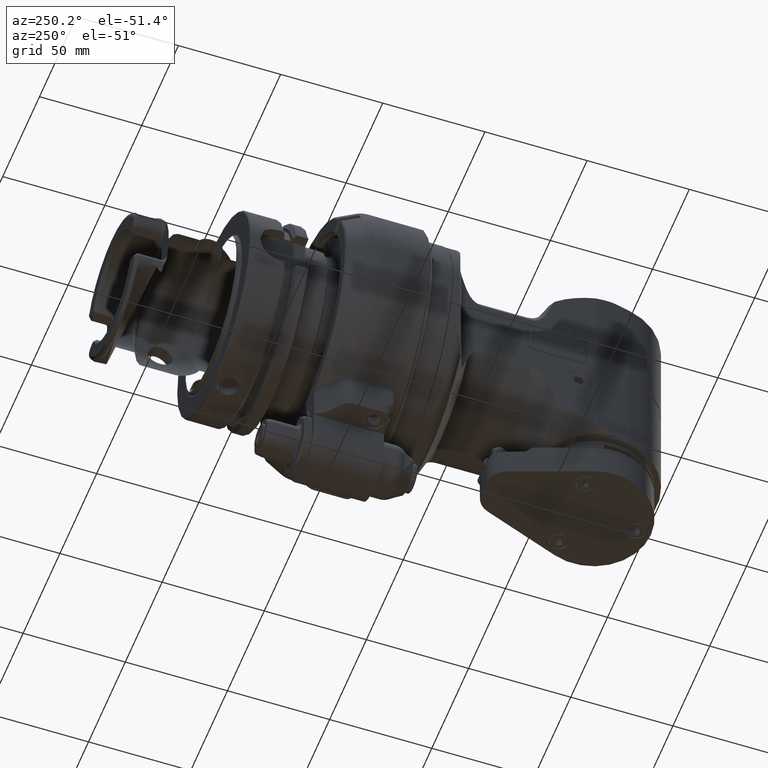
[diagram: clean part render]
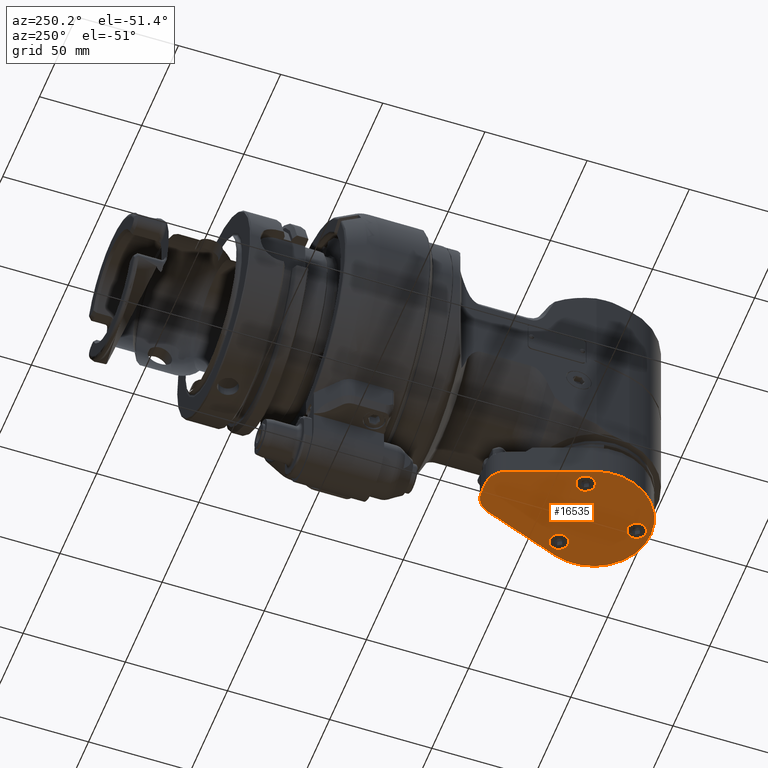
[diagram: same view with one face highlighted and labeled with its STEP entity id]
A machine part, auxiliary view. The second image highlights one B-rep face of the part: STEP entity #16535.
In plain terms, the highlighted planar face has unit normal (-0, 0, -1).
Its self-contained STEP definition (entity closure, byte-faithful):
#1438=LINE('',#32551,#2616);
#1442=LINE('',#32562,#2620);
#1443=LINE('',#32566,#2621);
#2616=VECTOR('',#22000,40.2723577721501);
#2620=VECTOR('',#22012,6.281019193707);
#2621=VECTOR('',#22015,40.2723577721501);
#3428=FACE_BOUND('',#5544,.T.);
#3429=FACE_BOUND('',#5545,.T.);
#3430=FACE_BOUND('',#5546,.T.);
#3744=PLANE('',#18174);
#4521=FACE_OUTER_BOUND('',#5543,.T.);
#5543=EDGE_LOOP('',(#14175,#14176,#14177,#14178,#14179,#14180));
#5544=EDGE_LOOP('',(#14181));
#5545=EDGE_LOOP('',(#14182));
#5546=EDGE_LOOP('',(#14183));
#6471=CIRCLE('',#18173,10.);
#6472=CIRCLE('',#18175,10.);
#6473=CIRCLE('',#18176,28.);
#6474=CIRCLE('',#18177,4.5);
#6475=CIRCLE('',#18178,4.5);
#6476=CIRCLE('',#18179,4.5);
#7781=VERTEX_POINT('',#32547);
#7783=VERTEX_POINT('',#32550);
#7785=VERTEX_POINT('',#32557);
#7786=VERTEX_POINT('',#32561);
#7787=VERTEX_POINT('',#32563);
#7788=VERTEX_POINT('',#32565);
#7789=VERTEX_POINT('',#32568);
#7790=VERTEX_POINT('',#32570);
#7791=VERTEX_POINT('',#32572);
#10050=EDGE_CURVE('',#7783,#7781,#1438,.T.);
#10055=EDGE_CURVE('',#7781,#7785,#6471,.T.);
#10056=EDGE_CURVE('',#7786,#7785,#1442,.T.);
#10057=EDGE_CURVE('',#7786,#7787,#6472,.T.);
#10058=EDGE_CURVE('',#7787,#7788,#1443,.T.);
#10059=EDGE_CURVE('',#7788,#7783,#6473,.T.);
#10060=EDGE_CURVE('',#7789,#7789,#6474,.T.);
#10061=EDGE_CURVE('',#7790,#7790,#6475,.T.);
#10062=EDGE_CURVE('',#7791,#7791,#6476,.T.);
#14175=ORIENTED_EDGE('',*,*,#10056,.F.);
#14176=ORIENTED_EDGE('',*,*,#10057,.T.);
#14177=ORIENTED_EDGE('',*,*,#10058,.T.);
#14178=ORIENTED_EDGE('',*,*,#10059,.T.);
#14179=ORIENTED_EDGE('',*,*,#10050,.T.);
#14180=ORIENTED_EDGE('',*,*,#10055,.T.);
#14181=ORIENTED_EDGE('',*,*,#10060,.T.);
#14182=ORIENTED_EDGE('',*,*,#10061,.T.);
#14183=ORIENTED_EDGE('',*,*,#10062,.T.);
#16535=ADVANCED_FACE('',(#4521,#3428,#3429,#3430),#3744,.T.);
#18173=AXIS2_PLACEMENT_3D('',#32559,#22008,#22009);
#18174=AXIS2_PLACEMENT_3D('',#32560,#22010,#22011);
#18175=AXIS2_PLACEMENT_3D('',#32564,#22013,#22014);
#18176=AXIS2_PLACEMENT_3D('',#32567,#22016,#22017);
#18177=AXIS2_PLACEMENT_3D('',#32569,#22018,#22019);
#18178=AXIS2_PLACEMENT_3D('',#32571,#22020,#22021);
#18179=AXIS2_PLACEMENT_3D('',#32573,#22022,#22023);
#22000=DIRECTION('',(-0.939692620785897,0.,0.342020143325699));
#22008=DIRECTION('center_axis',(0.,1.,0.));
#22009=DIRECTION('ref_axis',(-0.342020143325282,0.,-0.939692620786049));
#22010=DIRECTION('center_axis',(0.,1.,0.));
#22011=DIRECTION('ref_axis',(-1.,0.,0.));
#22012=DIRECTION('',(0.,0.,-1.));
#22013=DIRECTION('center_axis',(0.,1.,0.));
#22014=DIRECTION('ref_axis',(-1.,0.,0.));
#22015=DIRECTION('',(0.939692620785897,0.,0.342020143325699));
#22016=DIRECTION('center_axis',(0.,1.,0.));
#22017=DIRECTION('ref_axis',(-0.342020143325699,0.,0.939692620785897));
#22018=DIRECTION('center_axis',(0.,-1.,0.));
#22019=DIRECTION('ref_axis',(-1.,0.,0.));
#22020=DIRECTION('center_axis',(0.,-1.,0.));
#22021=DIRECTION('ref_axis',(-1.,0.,0.));
#22022=DIRECTION('center_axis',(0.,-1.,0.));
#22023=DIRECTION('ref_axis',(-1.,0.,0.));
#32547=CARTESIAN_POINT('',(230.6428955667,71.5,-12.53743580471));
#32550=CARTESIAN_POINT('',(268.4865329869,71.5,-26.31139338201));
#32551=CARTESIAN_POINT('',(268.4865329869,71.5,-26.31139338201));
#32557=CARTESIAN_POINT('',(224.063097,71.5,-3.140509596854));
#32559=CARTESIAN_POINT('Origin',(234.063097,71.5,-3.140509596854));
#32560=CARTESIAN_POINT('Origin',(278.063097,71.5,0.));
#32561=CARTESIAN_POINT('',(224.063097,71.5,3.140509596854));
#32562=CARTESIAN_POINT('',(224.063097,71.5,3.140509596854));
#32563=CARTESIAN_POINT('',(230.6428955667,71.5,12.53743580471));
#32564=CARTESIAN_POINT('Origin',(234.063097,71.5,3.140509596854));
#32565=CARTESIAN_POINT('',(268.4865329869,71.5,26.31139338201));
#32566=CARTESIAN_POINT('',(230.6428955667,71.5,12.53743580471));
#32567=CARTESIAN_POINT('Origin',(278.063097,71.5,0.));
#32568=CARTESIAN_POINT('',(303.563097,71.5,0.));
#32569=CARTESIAN_POINT('Origin',(299.063097,71.5,0.));
#32570=CARTESIAN_POINT('',(272.063097,71.5,18.18653347947));
#32571=CARTESIAN_POINT('Origin',(267.563097,71.5,18.18653347947));
#32572=CARTESIAN_POINT('',(272.063097,71.5,-18.18653347947));
#32573=CARTESIAN_POINT('Origin',(267.563097,71.5,-18.18653347947));